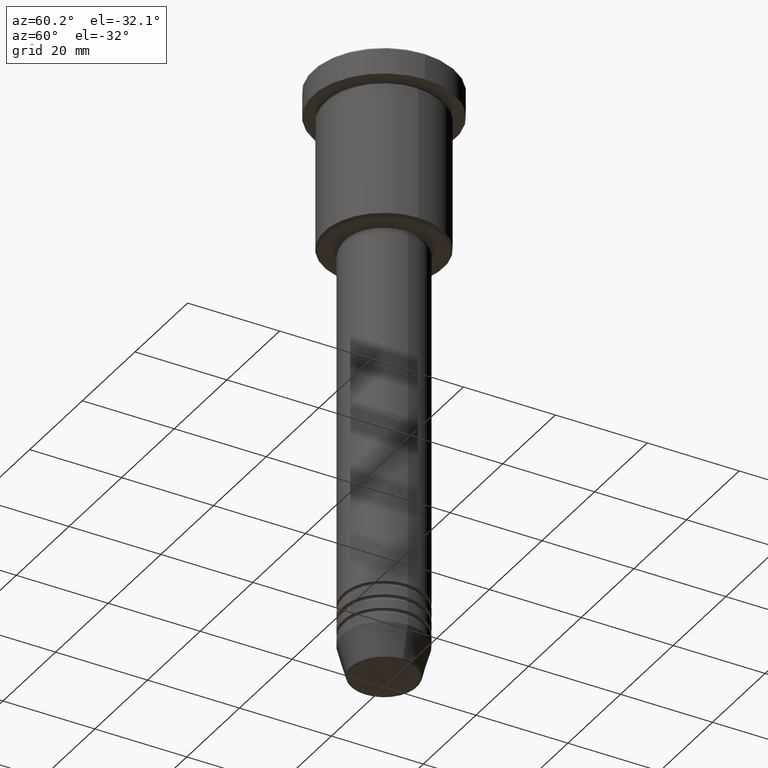
[diagram: clean part render]
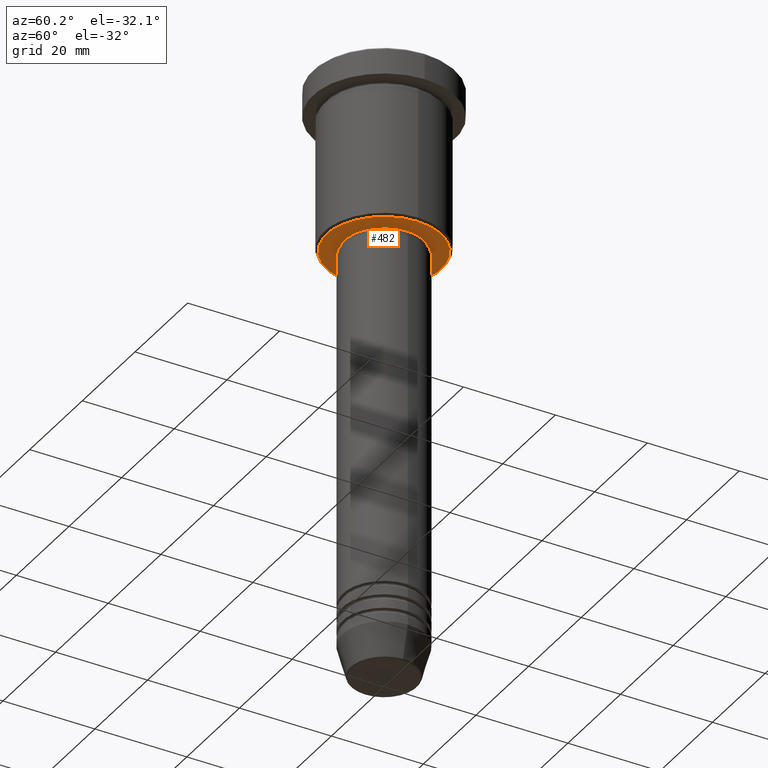
[diagram: same view with one face highlighted and labeled with its STEP entity id]
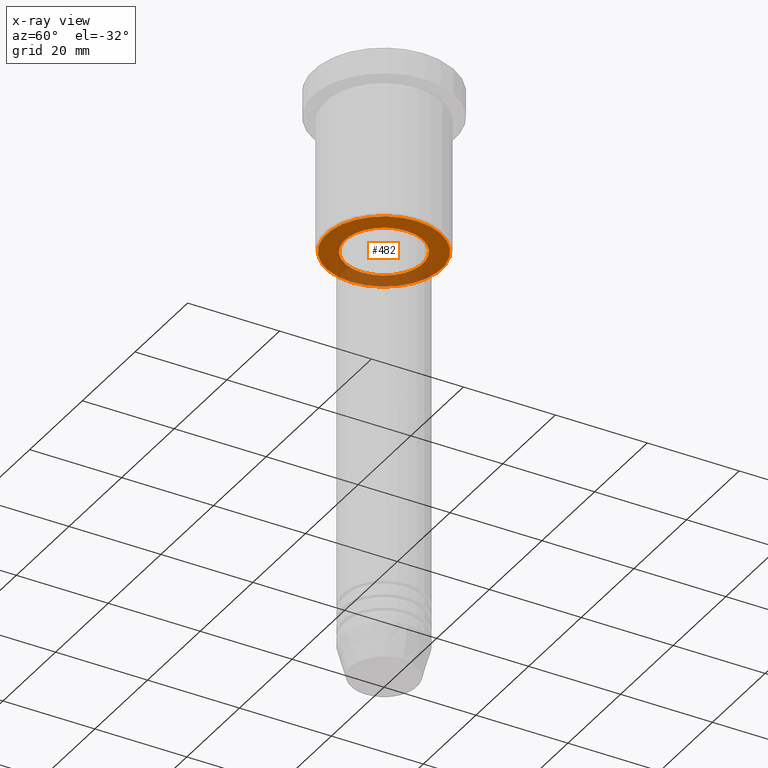
[diagram: x-ray of the same camera — body ghosted, the highlighted face saturated]
A machine part, auxiliary view. The second image highlights one B-rep face of the part: STEP entity #482.
The next image is the same camera in x-ray: the body ghosted, the highlighted face saturated — about 26% of this face is hidden behind the body in this view.
In plain terms, the highlighted planar face has unit normal (0, 0, -1).
Its self-contained STEP definition (entity closure, byte-faithful):
#36 = ORIENTED_EDGE ( 'NONE', *, *, #167, .T. ) ;
#43 = EDGE_LOOP ( 'NONE', ( #1045, #1048 ) ) ;
#80 = CARTESIAN_POINT ( 'NONE',  ( 0.000000000000000000, 0.000000000000000000, -35.99999999999999289 ) ) ;
#82 = ORIENTED_EDGE ( 'NONE', *, *, #875, .T. ) ;
#98 = DIRECTION ( 'NONE',  ( -1.000000000000000000, 0.000000000000000000, 0.000000000000000000 ) ) ;
#143 = AXIS2_PLACEMENT_3D ( 'NONE', #392, #839, #297 ) ;
#157 = CARTESIAN_POINT ( 'NONE',  ( 0.000000000000000000, 13.00000000000000000, -35.99999999999999289 ) ) ;
#161 = AXIS2_PLACEMENT_3D ( 'NONE', #255, #883, #1157 ) ;
#167 = EDGE_CURVE ( 'NONE', #490, #1052, #412, .T. ) ;
#190 = DIRECTION ( 'NONE',  ( 0.000000000000000000, 0.000000000000000000, -1.000000000000000000 ) ) ;
#198 = AXIS2_PLACEMENT_3D ( 'NONE', #483, #210, #568 ) ;
#210 = DIRECTION ( 'NONE',  ( -0.000000000000000000, -0.000000000000000000, 1.000000000000000000 ) ) ;
#235 = DIRECTION ( 'NONE',  ( 0.000000000000000000, 0.000000000000000000, -1.000000000000000000 ) ) ;
#255 = CARTESIAN_POINT ( 'NONE',  ( 0.000000000000000000, 0.000000000000000000, -35.99999999999999289 ) ) ;
#258 = FACE_OUTER_BOUND ( 'NONE', #1127, .T. ) ;
#268 = CARTESIAN_POINT ( 'NONE',  ( 12.49999999999999645, 0.000000000000000000, -35.99999999999999289 ) ) ;
#297 = DIRECTION ( 'NONE',  ( 1.000000000000000000, 0.000000000000000000, 0.000000000000000000 ) ) ;
#312 = EDGE_CURVE ( 'NONE', #1043, #788, #595, .T. ) ;
#392 = CARTESIAN_POINT ( 'NONE',  ( 0.000000000000000000, 0.000000000000000000, -35.99999999999999289 ) ) ;
#412 = CIRCLE ( 'NONE', #594, 12.49999999999999645 ) ;
#482 = ADVANCED_FACE ( 'NONE', ( #258, #715 ), #1143, .T. ) ;
#483 = CARTESIAN_POINT ( 'NONE',  ( 0.000000000000000000, 0.000000000000000000, -35.99999999999999289 ) ) ;
#490 = VERTEX_POINT ( 'NONE', #512 ) ;
#512 = CARTESIAN_POINT ( 'NONE',  ( -12.49999999999999645, 1.561424668912875111E-15, -35.99999999999999289 ) ) ;
#568 = DIRECTION ( 'NONE',  ( 1.000000000000000000, 0.000000000000000000, 0.000000000000000000 ) ) ;
#594 = AXIS2_PLACEMENT_3D ( 'NONE', #80, #190, #98 ) ;
#595 = CIRCLE ( 'NONE', #198, 8.499999999999998224 ) ;
#660 = EDGE_CURVE ( 'NONE', #788, #1043, #735, .T. ) ;
#715 = FACE_BOUND ( 'NONE', #43, .T. ) ;
#719 = CIRCLE ( 'NONE', #161, 12.49999999999999645 ) ;
#735 = CIRCLE ( 'NONE', #143, 8.499999999999998224 ) ;
#786 = CARTESIAN_POINT ( 'NONE',  ( 8.499999999999998224, 0.000000000000000000, -35.99999999999999289 ) ) ;
#788 = VERTEX_POINT ( 'NONE', #786 ) ;
#806 = DIRECTION ( 'NONE',  ( -1.000000000000000000, 0.000000000000000000, -0.000000000000000000 ) ) ;
#839 = DIRECTION ( 'NONE',  ( -0.000000000000000000, -0.000000000000000000, 1.000000000000000000 ) ) ;
#875 = EDGE_CURVE ( 'NONE', #1052, #490, #719, .T. ) ;
#883 = DIRECTION ( 'NONE',  ( 0.000000000000000000, 0.000000000000000000, -1.000000000000000000 ) ) ;
#1043 = VERTEX_POINT ( 'NONE', #1165 ) ;
#1045 = ORIENTED_EDGE ( 'NONE', *, *, #660, .T. ) ;
#1048 = ORIENTED_EDGE ( 'NONE', *, *, #312, .T. ) ;
#1052 = VERTEX_POINT ( 'NONE', #268 ) ;
#1127 = EDGE_LOOP ( 'NONE', ( #82, #36 ) ) ;
#1143 = PLANE ( 'NONE',  #1152 ) ;
#1152 = AXIS2_PLACEMENT_3D ( 'NONE', #157, #235, #806 ) ;
#1157 = DIRECTION ( 'NONE',  ( -1.000000000000000000, 0.000000000000000000, 0.000000000000000000 ) ) ;
#1165 = CARTESIAN_POINT ( 'NONE',  ( -8.499999999999998224, 1.040949779275249943E-15, -35.99999999999999289 ) ) ;